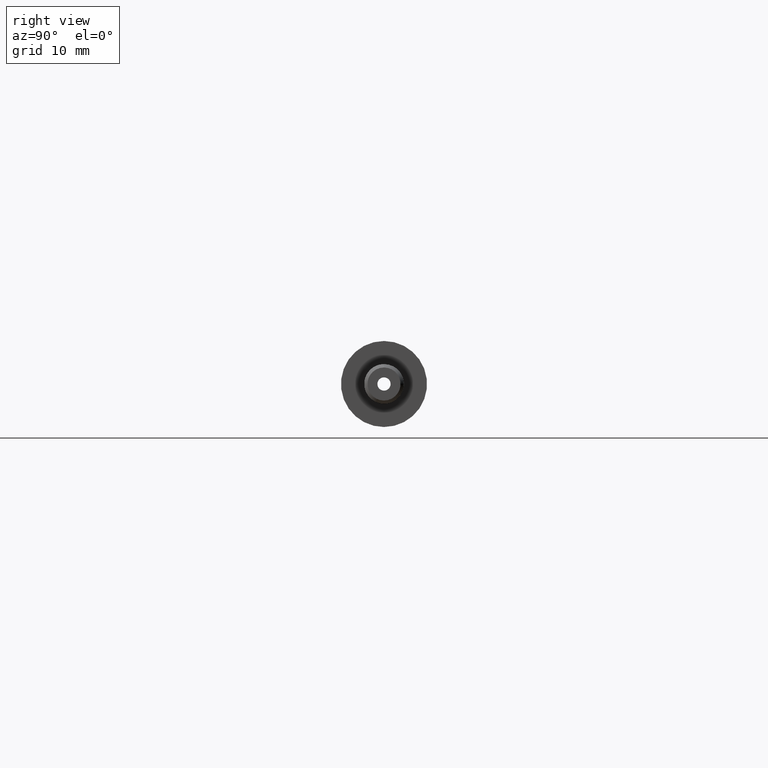
[diagram: clean part render]
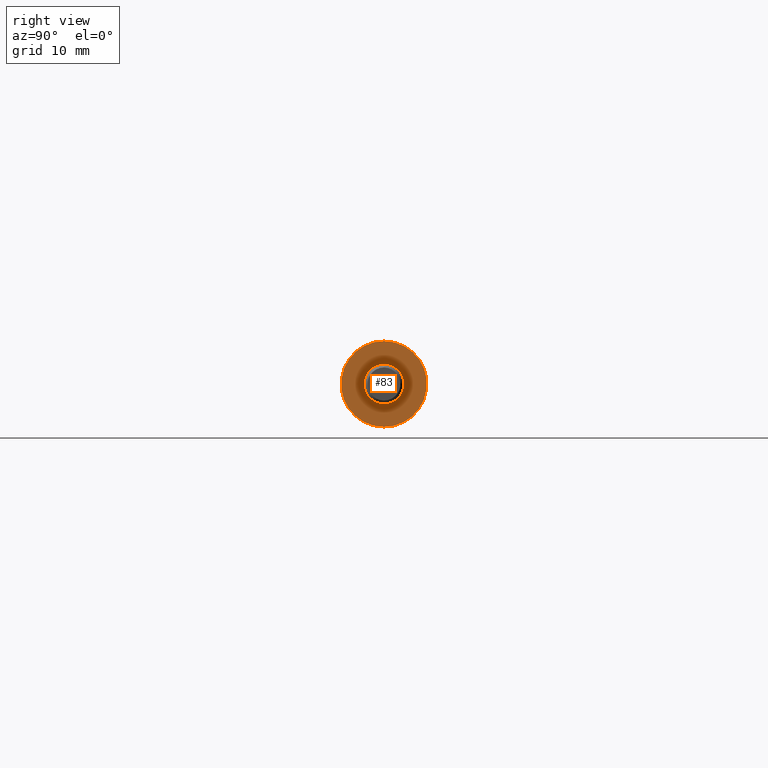
[diagram: same view with one face highlighted and labeled with its STEP entity id]
A machine part, right view. The second image highlights one B-rep face of the part: STEP entity #83.
In plain terms, the highlighted planar face has unit normal (1, 0, 0).
Its self-contained STEP definition (entity closure, byte-faithful):
#8 = ORIENTED_EDGE ( 'NONE', *, *, #203, .T. ) ;
#51 = DIRECTION ( 'NONE',  ( 0.0000000000000000000, 0.0000000000000000000, -1.000000000000000000 ) ) ;
#83 = ADVANCED_FACE ( 'NONE', ( #869, #421 ), #493, .T. ) ;
#92 = VERTEX_POINT ( 'NONE', #545 ) ;
#127 = CARTESIAN_POINT ( 'NONE',  ( 0.0000000000000000000, 0.0000000000000000000, 0.0000000000000000000 ) ) ;
#147 = ORIENTED_EDGE ( 'NONE', *, *, #1013, .T. ) ;
#203 = EDGE_CURVE ( 'NONE', #92, #962, #1031, .T. ) ;
#223 = CARTESIAN_POINT ( 'NONE',  ( 0.0000000000000000000, 0.0000000000000000000, -6.499999999999984900 ) ) ;
#234 = VERTEX_POINT ( 'NONE', #911 ) ;
#268 = DIRECTION ( 'NONE',  ( 0.0000000000000000000, 0.0000000000000000000, -1.000000000000000000 ) ) ;
#277 = AXIS2_PLACEMENT_3D ( 'NONE', #363, #355, #360 ) ;
#293 = CIRCLE ( 'NONE', #277, 2.999999999999998700 ) ;
#323 = EDGE_CURVE ( 'NONE', #438, #234, #903, .T. ) ;
#326 = AXIS2_PLACEMENT_3D ( 'NONE', #127, #658, #51 ) ;
#355 = DIRECTION ( 'NONE',  ( 1.000000000000000000, -0.0000000000000000000, -0.0000000000000000000 ) ) ;
#360 = DIRECTION ( 'NONE',  ( 0.0000000000000000000, 0.0000000000000000000, -1.000000000000000000 ) ) ;
#363 = CARTESIAN_POINT ( 'NONE',  ( 0.0000000000000000000, 0.0000000000000000000, 0.0000000000000000000 ) ) ;
#421 = FACE_BOUND ( 'NONE', #702, .T. ) ;
#438 = VERTEX_POINT ( 'NONE', #534 ) ;
#445 = DIRECTION ( 'NONE',  ( 1.000000000000000000, -0.0000000000000000000, -0.0000000000000000000 ) ) ;
#474 = CARTESIAN_POINT ( 'NONE',  ( 0.0000000000000000000, 6.499999999999984900, 0.0000000000000000000 ) ) ;
#493 = PLANE ( 'NONE',  #656 ) ;
#497 = DIRECTION ( 'NONE',  ( -0.0000000000000000000, 0.0000000000000000000, -1.000000000000000000 ) ) ;
#534 = CARTESIAN_POINT ( 'NONE',  ( 0.0000000000000000000, 3.673940397442058400E-016, 2.999999999999998700 ) ) ;
#536 = CARTESIAN_POINT ( 'NONE',  ( 0.0000000000000000000, 0.0000000000000000000, 0.0000000000000000000 ) ) ;
#545 = CARTESIAN_POINT ( 'NONE',  ( 0.0000000000000000000, 7.960204194457777700E-016, 6.499999999999984900 ) ) ;
#655 = DIRECTION ( 'NONE',  ( 1.000000000000000000, 0.0000000000000000000, -0.0000000000000000000 ) ) ;
#656 = AXIS2_PLACEMENT_3D ( 'NONE', #474, #655, #497 ) ;
#658 = DIRECTION ( 'NONE',  ( 1.000000000000000000, -0.0000000000000000000, -0.0000000000000000000 ) ) ;
#689 = ORIENTED_EDGE ( 'NONE', *, *, #1065, .F. ) ;
#702 = EDGE_LOOP ( 'NONE', ( #689, #895 ) ) ;
#869 = FACE_OUTER_BOUND ( 'NONE', #916, .T. ) ;
#887 = AXIS2_PLACEMENT_3D ( 'NONE', #536, #445, #268 ) ;
#890 = CARTESIAN_POINT ( 'NONE',  ( 0.0000000000000000000, 0.0000000000000000000, 0.0000000000000000000 ) ) ;
#895 = ORIENTED_EDGE ( 'NONE', *, *, #323, .F. ) ;
#899 = DIRECTION ( 'NONE',  ( 1.000000000000000000, -0.0000000000000000000, -0.0000000000000000000 ) ) ;
#903 = CIRCLE ( 'NONE', #326, 2.999999999999998700 ) ;
#911 = CARTESIAN_POINT ( 'NONE',  ( 0.0000000000000000000, 0.0000000000000000000, -2.999999999999998700 ) ) ;
#912 = DIRECTION ( 'NONE',  ( 0.0000000000000000000, 0.0000000000000000000, -1.000000000000000000 ) ) ;
#916 = EDGE_LOOP ( 'NONE', ( #147, #8 ) ) ;
#926 = AXIS2_PLACEMENT_3D ( 'NONE', #890, #899, #912 ) ;
#928 = CIRCLE ( 'NONE', #887, 6.499999999999984900 ) ;
#962 = VERTEX_POINT ( 'NONE', #223 ) ;
#1013 = EDGE_CURVE ( 'NONE', #962, #92, #928, .T. ) ;
#1031 = CIRCLE ( 'NONE', #926, 6.499999999999984900 ) ;
#1065 = EDGE_CURVE ( 'NONE', #234, #438, #293, .T. ) ;